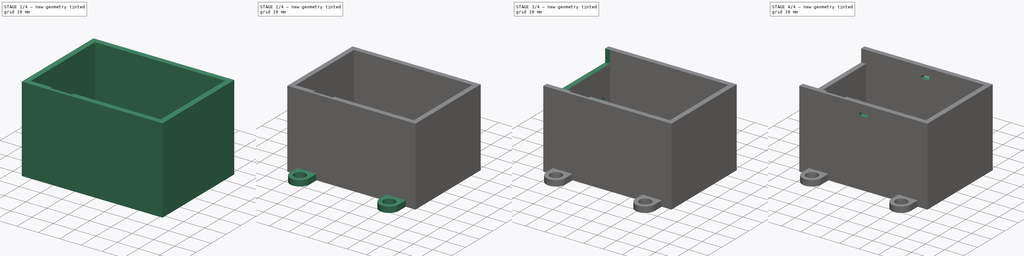
[diagram: build sequence overview — one tinted view per stage of 4, left to right]
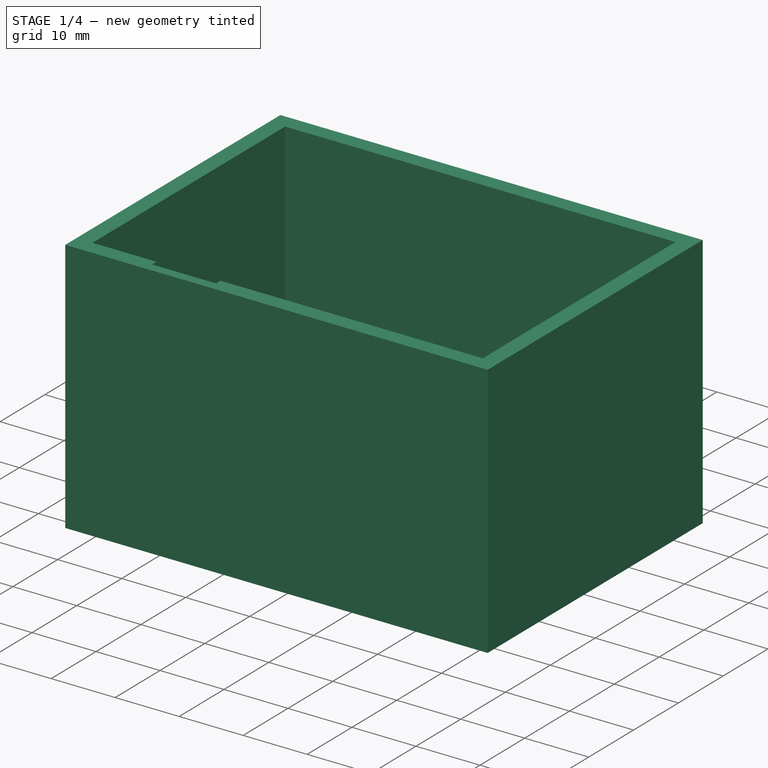
[diagram: stage 1 of 4 — iso view after this stage's code; geometry added in this stage tinted green]
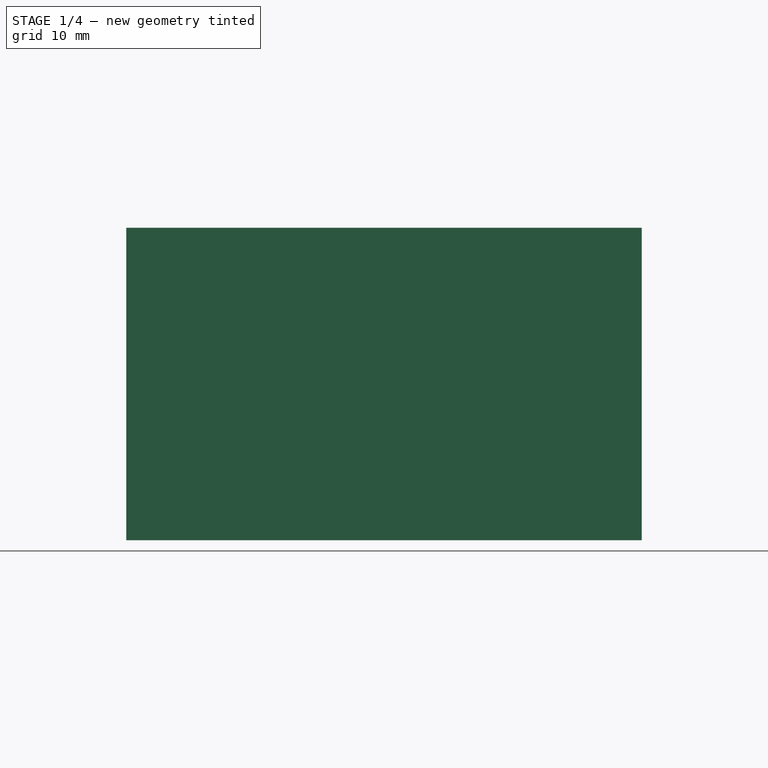
[diagram: stage 1 of 4 — front view after this stage's code; geometry added in this stage tinted green]
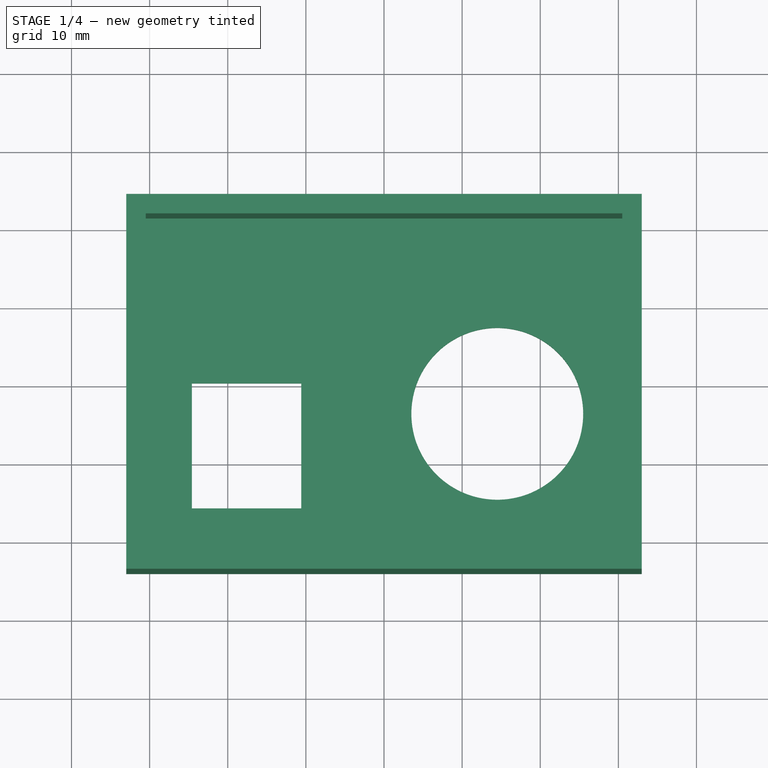
[diagram: stage 1 of 4 — top view after this stage's code; geometry added in this stage tinted green]
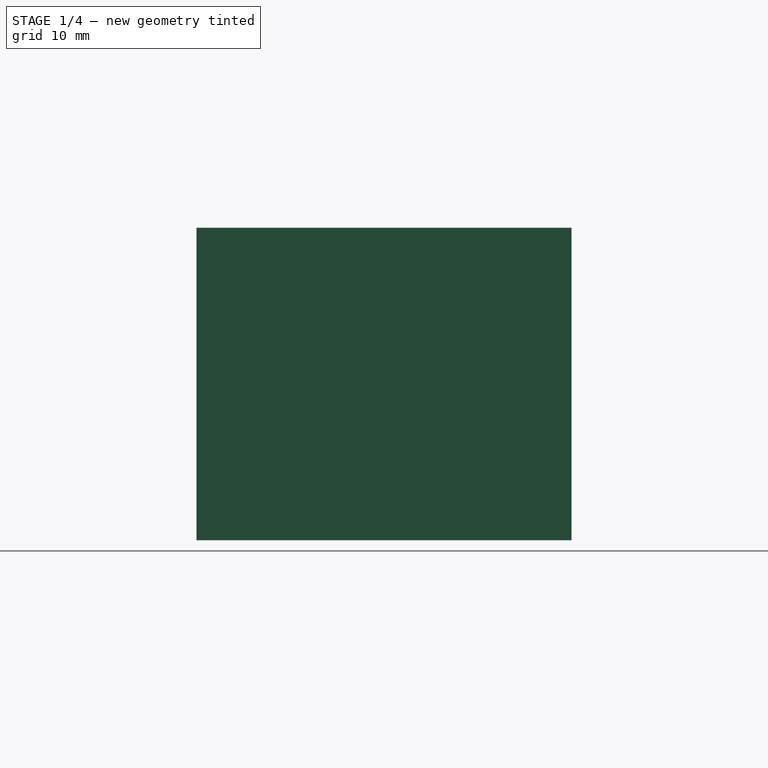
[diagram: stage 1 of 4 — right view after this stage's code; geometry added in this stage tinted green]
FCSTD DOCUMENT  (FreeCAD 0.15R4671 (Git))
Label: goproCase
License: All rights reserved
LicenseURL: http://fr.wikipedia.org/wiki/<copyright redacted>
objects: Sketcher::SketchObject×8, PartDesign::Pocket×6, PartDesign::Pad×2, PartDesign::Mirrored×2, PartDesign::MultiTransform×1, Part::Chamfer×1, App::MeasureDistance×1
note: 28 computed .brp shape members not serialized (recipe doc carries the construction recipe); baked Part::Feature solids carry a one-line shape summary decoded from their .brp

FEATURE [Sketcher::SketchObject] Sketch  label="box_face_sketch"
  sketch-geometry (9):
    g0: LineSegment StartX=-33 StartY=24 StartZ=0 EndX=33 EndY=24 EndZ=0
    g1: LineSegment StartX=33 StartY=24 StartZ=0 EndX=33 EndY=-24 EndZ=0
    g2: LineSegment StartX=33 StartY=-24 StartZ=0 EndX=-33 EndY=-24 EndZ=0
    g3: LineSegment StartX=-33 StartY=-24 StartZ=0 EndX=-33 EndY=24 EndZ=0
    g4: LineSegment StartX=-24.6 StartY=0.4 StartZ=0 EndX=-10.6 EndY=0.4 EndZ=0
    g5: LineSegment StartX=-10.6 StartY=0.4 StartZ=0 EndX=-10.6 EndY=-15.6 EndZ=0
    g6: LineSegment StartX=-10.6 StartY=-15.6 StartZ=0 EndX=-24.6 EndY=-15.6 EndZ=0
    g7: LineSegment StartX=-24.6 StartY=-15.6 StartZ=0 EndX=-24.6 EndY=0.4 EndZ=0
    g8: Circle CenterX=14.5 CenterY=-3.5 CenterZ=0 NormalX=0 NormalY=0 NormalZ=1 Radius=11
  constraints (26):
    c: Coincident(g0,g1)
    c: Coincident(g1,g2)
    c: Coincident(g2,g3)
    c: Coincident(g3,g0)
    c: Horizontal(g0)
    c: Horizontal(g2)
    c: Vertical(g1)
    c: Vertical(g3)
    c: Symmetric(g2,g0,g-1)
    c: Distance(g0) = 66
    c: Distance(g3) = 48
    c: Coincident(g4,g5)
    c: Coincident(g5,g6)
    c: Coincident(g6,g7)
    c: Coincident(g7,g4)
    c: Horizontal(g4)
    c: Horizontal(g6)
    c: Vertical(g5)
    c: Vertical(g7)
    c: Distance(g5) = 16
    c: Distance(g6) = 14
    c: DistanceX(g8,g0) = 18.5
    c: Radius(g8) = 11
    c: DistanceX(g6,g2) = -8.4
    c: DistanceY(g6,g2) = -8.4
    c: DistanceY(g8,g1) = -20.5
FEATURE [PartDesign::Pad] Pad  label="boxFace_Pad"
  Length = 40
  Length2 = 100
  Sketch = -> Sketch
  Type = 0
FEATURE [Sketcher::SketchObject] Sketch001  label="inside_margin_Sketch"
  ExternalGeometry = -> [Pad]
  Placement = pos=(0,0,40) rot=(0,0,1;0rad)
  Support = -> Pad [Face11]
  sketch-geometry (8):
    g0: LineSegment StartX=-30.5 StartY=21.5 StartZ=0 EndX=30.5 EndY=21.5 EndZ=0
    g1: LineSegment StartX=30.5 StartY=21.5 StartZ=0 EndX=30.5 EndY=-21.5 EndZ=0
    g2: LineSegment StartX=-30.5 StartY=-21.5 StartZ=0 EndX=-30.5 EndY=21.5 EndZ=0
    g3: LineSegment StartX=30.5 StartY=-21.5 StartZ=0 EndX=-10.5 EndY=-21.5 EndZ=0
    g4: LineSegment StartX=-10.5 StartY=-21.5 StartZ=0 EndX=-10.5 EndY=-22.5 EndZ=0
    g5: LineSegment StartX=-10.5 StartY=-22.5 StartZ=0 EndX=-20.5 EndY=-22.5 EndZ=0
    g6: LineSegment StartX=-20.5 StartY=-22.5 StartZ=0 EndX=-20.5 EndY=-21.5 EndZ=0
    g7: LineSegment StartX=-20.5 StartY=-21.5 StartZ=0 EndX=-30.5 EndY=-21.5 EndZ=0
  constraints (23):
    c: Coincident(g2,g0)
    c: Horizontal(g0)
    c: Vertical(g1)
    c: Vertical(g2)
    c: DistanceY(g-3,g0) = -2.5
    c: DistanceX(g-3,g0) = 2.5
    c: Symmetric(g2,g1,g-1)
    c: Coincident(g0,g1)
    c: Coincident(g1,g3)
    c: Horizontal(g3)
    c: Coincident(g3,g4)
    c: Vertical(g4)
    c: Coincident(g4,g5)
    c: Horizontal(g5)
    c: Coincident(g5,g6)
    c: Vertical(g6)
    c: Coincident(g6,g7)
    c: Horizontal(g7)
    c: Coincident(g7,g2)
    c: Distance(g7) = 10
    c: Distance(g5) = 10
    c: Distance(g4) = 1
    c: Equal(g4,g6)
FEATURE [PartDesign::Pocket] Pocket
  Length = 38.2
  Sketch = -> Sketch001
  Type = 0
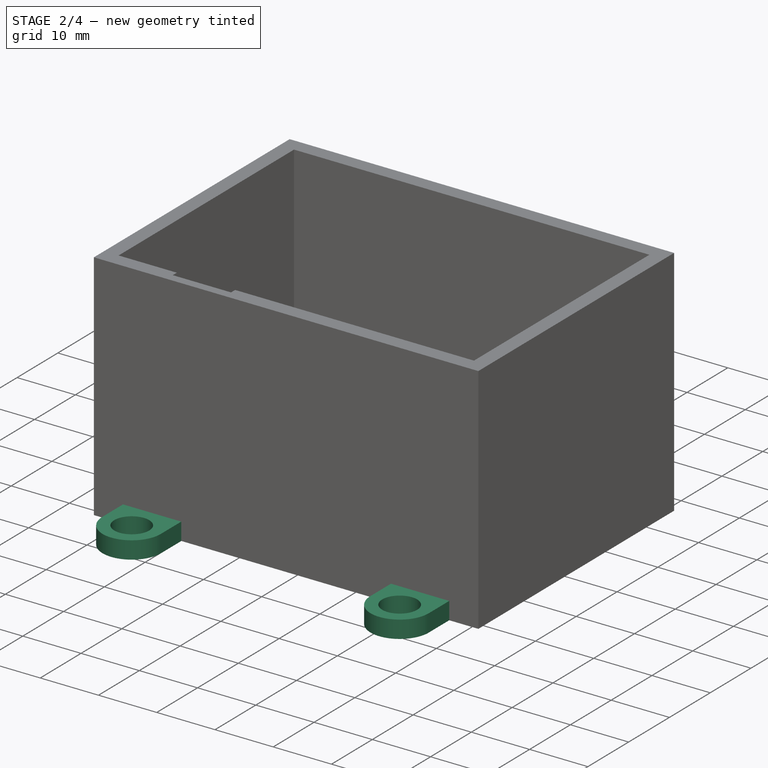
[diagram: stage 2 of 4 — iso view after this stage's code; geometry added in this stage tinted green]
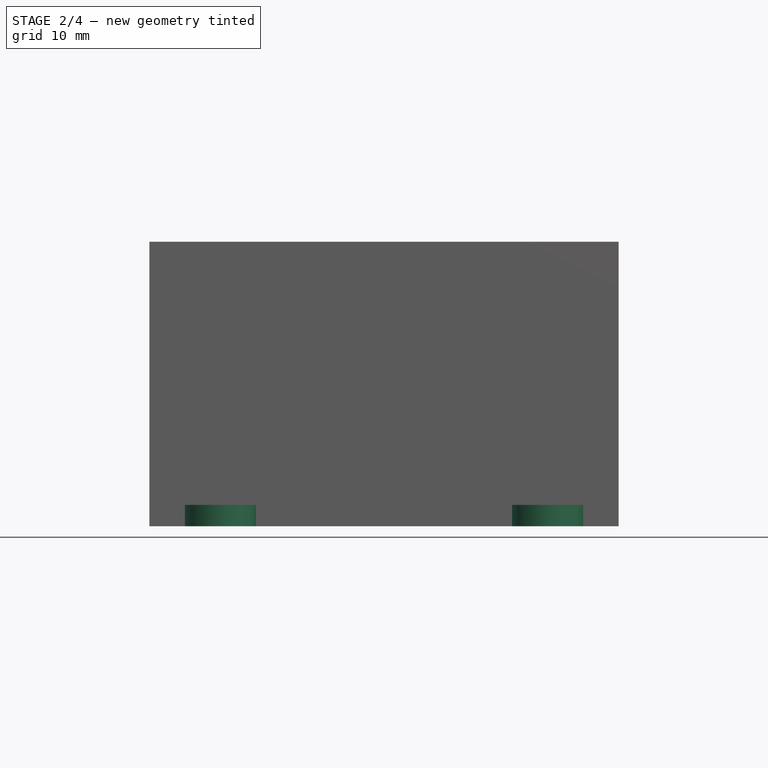
[diagram: stage 2 of 4 — front view after this stage's code; geometry added in this stage tinted green]
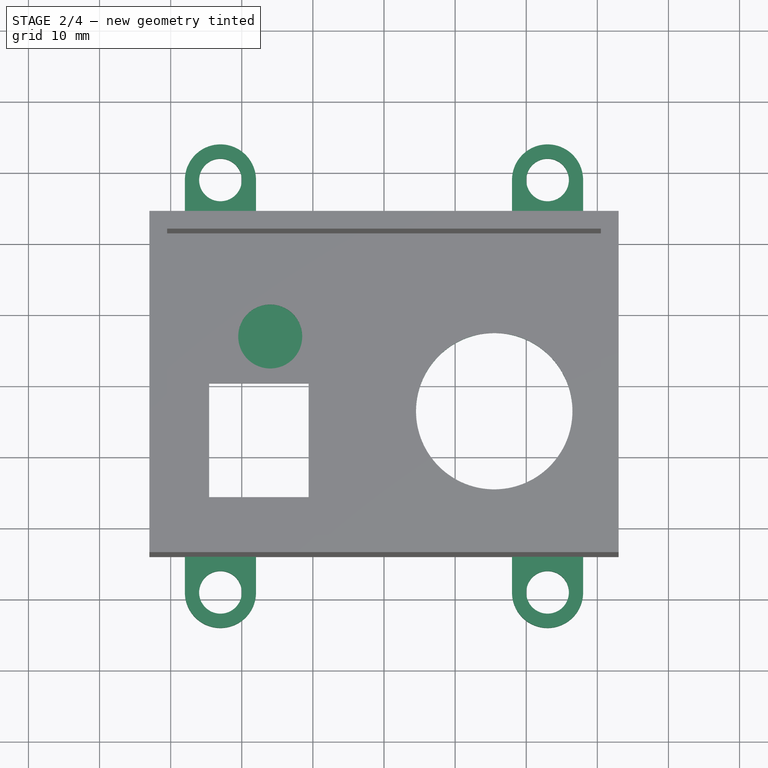
[diagram: stage 2 of 4 — top view after this stage's code; geometry added in this stage tinted green]
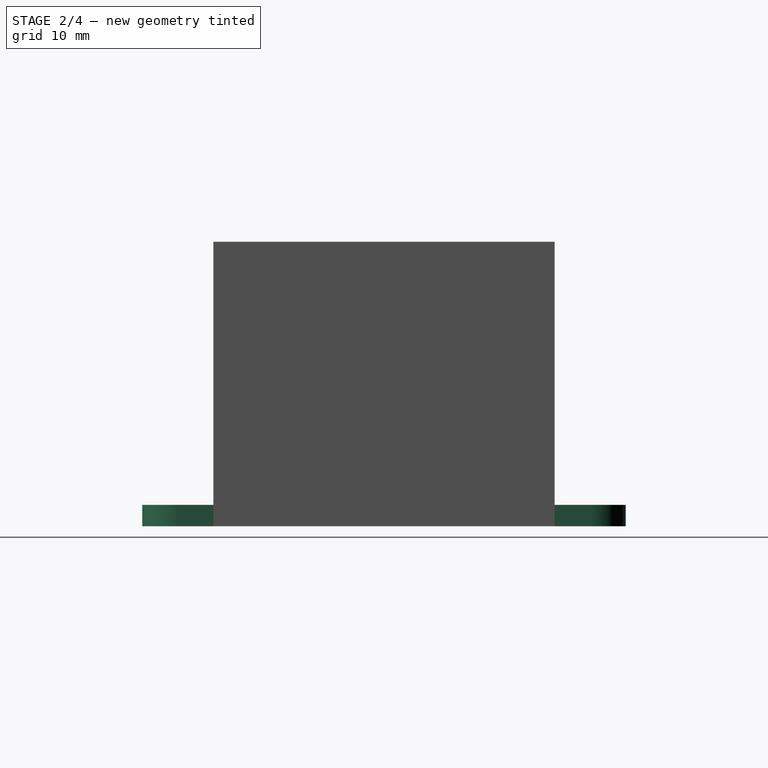
[diagram: stage 2 of 4 — right view after this stage's code; geometry added in this stage tinted green]
FEATURE [Sketcher::SketchObject] Sketch002  label="attach_Sketch"
  ExternalGeometry = -> [Pocket]
  Placement = pos=(0,0,0) rot=(1,0,0;3.14159rad)
  Support = -> Pocket [Face4]
  sketch-geometry (5):
    g0: LineSegment StartX=-28 StartY=24 StartZ=0 EndX=-18 EndY=24 EndZ=0
    g1: LineSegment StartX=-18 StartY=24 StartZ=0 EndX=-18 EndY=29 EndZ=0
    g2: LineSegment StartX=-28 StartY=29 StartZ=0 EndX=-28 EndY=24 EndZ=0
    g3: ArcOfCircle CenterX=-23 CenterY=29 CenterZ=0 NormalX=0 NormalY=0 NormalZ=1 Radius=5 StartAngle=0 EndAngle=3.14159
    g4: Circle CenterX=-23 CenterY=29 CenterZ=0 NormalX=0 NormalY=0 NormalZ=1 Radius=3
  constraints (15):
    c: Coincident(g0,g1)
    c: Coincident(g2,g0)
    c: Horizontal(g0)
    c: Vertical(g1)
    c: Vertical(g2)
    c: Distance(g2) = 5
    c: Coincident(g3,g2)
    c: Coincident(g3,g1)
    c: Equal(g1,g2)
    c: PointOnObject(g0,g-3)
    c: DistanceY(g3,g1) = 0
    c: Radius(g3) = 5
    c: DistanceX(g0,g-3) = -5
    c: Coincident(g4,g3)
    c: Radius(g4) = 3
FEATURE [PartDesign::Pad] Pad001  label="attach_Pad"
  Length = 3
  Length2 = 100
  Reversed = true
  Sketch = -> Sketch002
  Type = 0
FEATURE [PartDesign::Mirrored] Mirrored
  MirrorPlane = -> Sketch002 [H_Axis]
FEATURE [PartDesign::Mirrored] Mirrored001
  MirrorPlane = -> Sketch002 [V_Axis]
FEATURE [PartDesign::MultiTransform] MultiTransform
  Originals = -> [Pad001]
  Transformations = -> [Mirrored,Mirrored001]
FEATURE [Sketcher::SketchObject] Sketch003  label="power_button_hole_TODO_Sketch003"
  ExternalGeometry = -> [MultiTransform]
  Placement = pos=(0,0,1.8) rot=(0,0,1;0rad)
  Support = -> MultiTransform [Face34]
  sketch-geometry (1):
    g0: Circle CenterX=-16 CenterY=7 CenterZ=0 NormalX=0 NormalY=0 NormalZ=1 Radius=4.5
  constraints (3):
    c: Radius(g0) = 4.5
    c: DistanceX(g-4,g0) = 14.5
    c: DistanceY(g0,g-4) = 14.5
FEATURE [PartDesign::Pocket] Pocket001  label="power_button_TODO_check_cercle_positionPocket001"
  Length = 1
  Sketch = -> Sketch003
  Type = 0
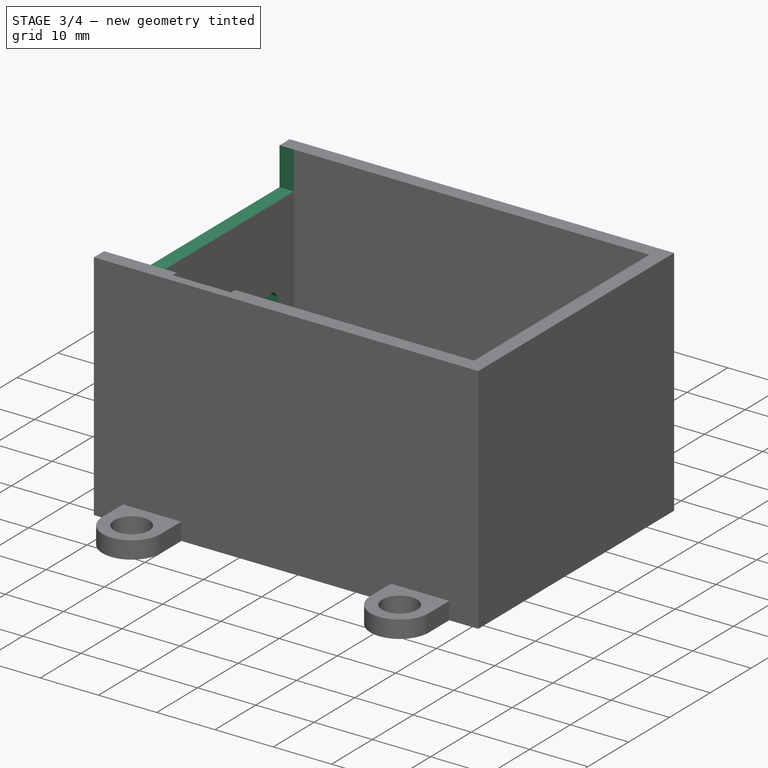
[diagram: stage 3 of 4 — iso view after this stage's code; geometry added in this stage tinted green]
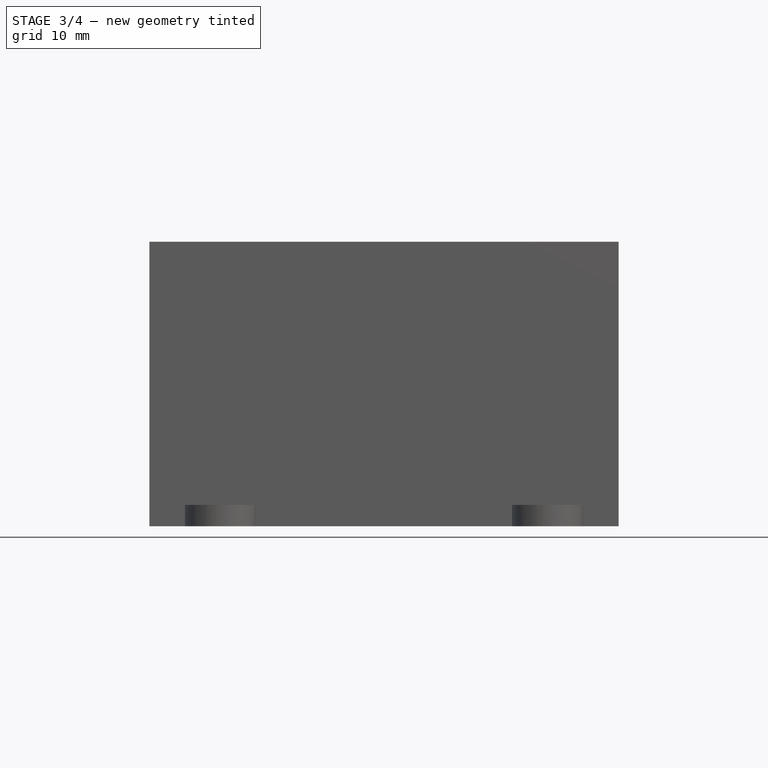
[diagram: stage 3 of 4 — front view after this stage's code; geometry added in this stage tinted green]
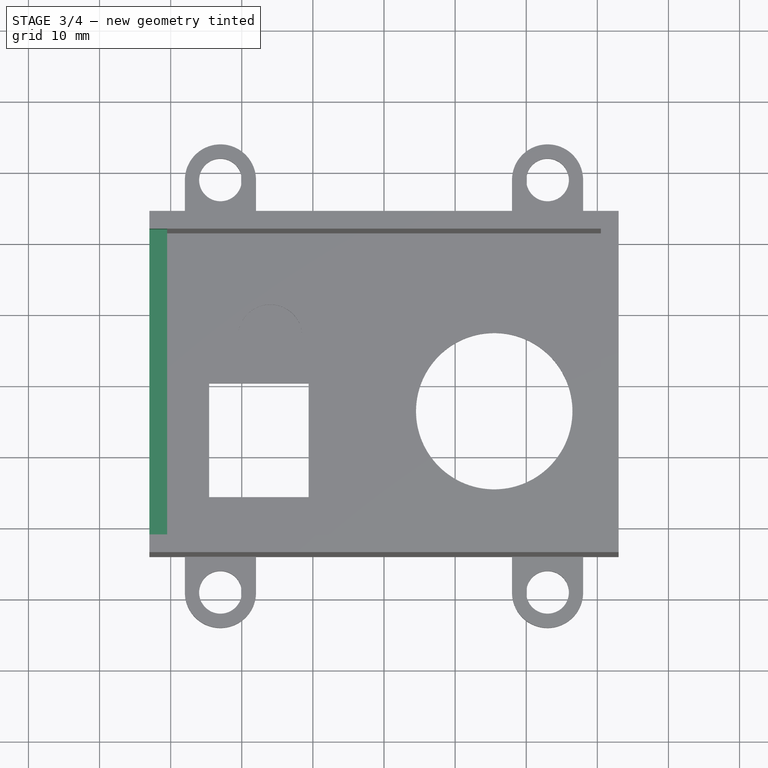
[diagram: stage 3 of 4 — top view after this stage's code; geometry added in this stage tinted green]
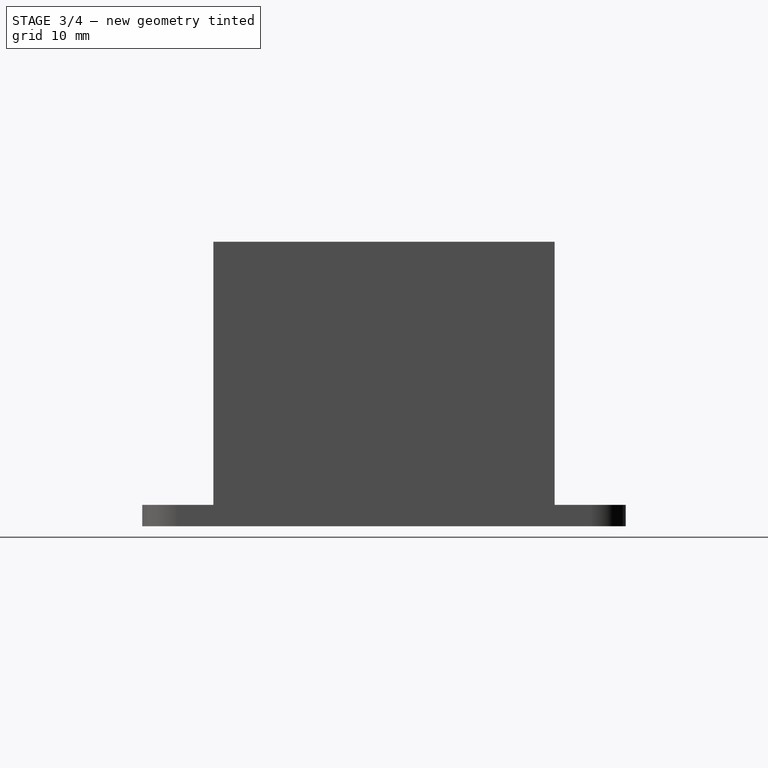
[diagram: stage 3 of 4 — right view after this stage's code; geometry added in this stage tinted green]
FEATURE [Sketcher::SketchObject] Sketch004  label="SD_card_hole_TODO_Sketch004"
  ExternalGeometry = -> [Pocket001]
  Placement = pos=(-33,0,0) rot=(0.57735,-0.57735,-0.57735;2.0944rad)
  Support = -> Pocket001 [Face12]
  sketch-geometry (4):
    g0: LineSegment StartX=-17.5 StartY=19.8 StartZ=0 EndX=12.5 EndY=19.8 EndZ=0
    g1: LineSegment StartX=12.5 StartY=19.8 StartZ=0 EndX=12.5 EndY=7.8 EndZ=0
    g2: LineSegment StartX=12.5 StartY=7.8 StartZ=0 EndX=-17.5 EndY=7.8 EndZ=0
    g3: LineSegment StartX=-17.5 StartY=7.8 StartZ=0 EndX=-17.5 EndY=19.8 EndZ=0
  constraints (12):
    c: Coincident(g0,g1)
    c: Coincident(g1,g2)
    c: Coincident(g2,g3)
    c: Coincident(g3,g0)
    c: Horizontal(g0)
    c: Horizontal(g2)
    c: Vertical(g1)
    c: Vertical(g3)
    c: Distance(g0) = 30
    c: Distance(g1) = 12
    c: DistanceX(g1,g-3) = 9
    c: DistanceY(g1,g-3) = -6
FEATURE [PartDesign::Pocket] Pocket002
  Length = 5
  Sketch = -> Sketch004
  Type = 0
FEATURE [Part::Chamfer] Chamfer  label="SD_Chamfer"
  Base = -> Pocket002
  Edges = 4 edges r=1: [Edge120,Edge121,Edge122,Edge123]
FEATURE [Sketcher::SketchObject] Sketch005  label="RetirerFacilement_Sketch005"
  ExternalGeometry = -> [Chamfer]
  Placement = pos=(-33,0,0) rot=(0.57735,-0.57735,-0.57735;2.0944rad)
  Support = -> Chamfer [Face1]
  sketch-geometry (4):
    g0: LineSegment StartX=-21.5 StartY=40 StartZ=0 EndX=21.5 EndY=40 EndZ=0
    g1: LineSegment StartX=21.5 StartY=40 StartZ=0 EndX=21.5 EndY=33.5 EndZ=0
    g2: LineSegment StartX=21.5 StartY=33.5 StartZ=0 EndX=-21.5 EndY=33.5 EndZ=0
    g3: LineSegment StartX=-21.5 StartY=33.5 StartZ=0 EndX=-21.5 EndY=40 EndZ=0
  constraints (12):
    c: Coincident(g0,g1)
    c: Coincident(g1,g2)
    c: Coincident(g2,g3)
    c: Coincident(g3,g0)
    c: Horizontal(g0)
    c: Horizontal(g2)
    c: Vertical(g1)
    c: Vertical(g3)
    c: Distance(g3) = 6.5
    c: PointOnObject(g0,g-3)
    c: DistanceX(g-3,g0) = -2.5
    c: DistanceX(g0,g-3) = -2.5
FEATURE [PartDesign::Pocket] Pocket003  label="RetirerFacilement_Pocket003"
  Length = 5
  Sketch = -> Sketch005
  Type = 0
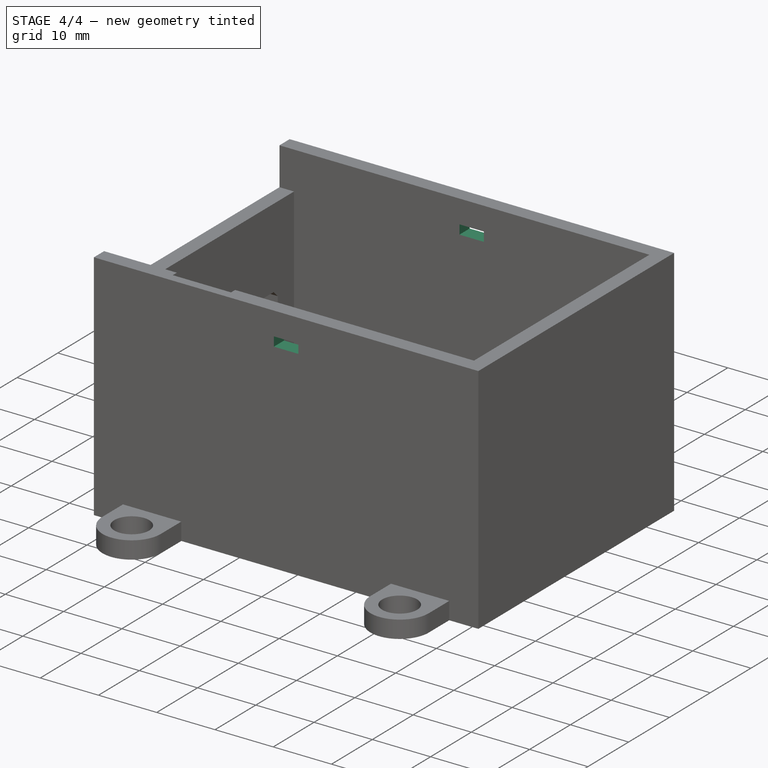
[diagram: stage 4 of 4 — iso view after this stage's code; geometry added in this stage tinted green]
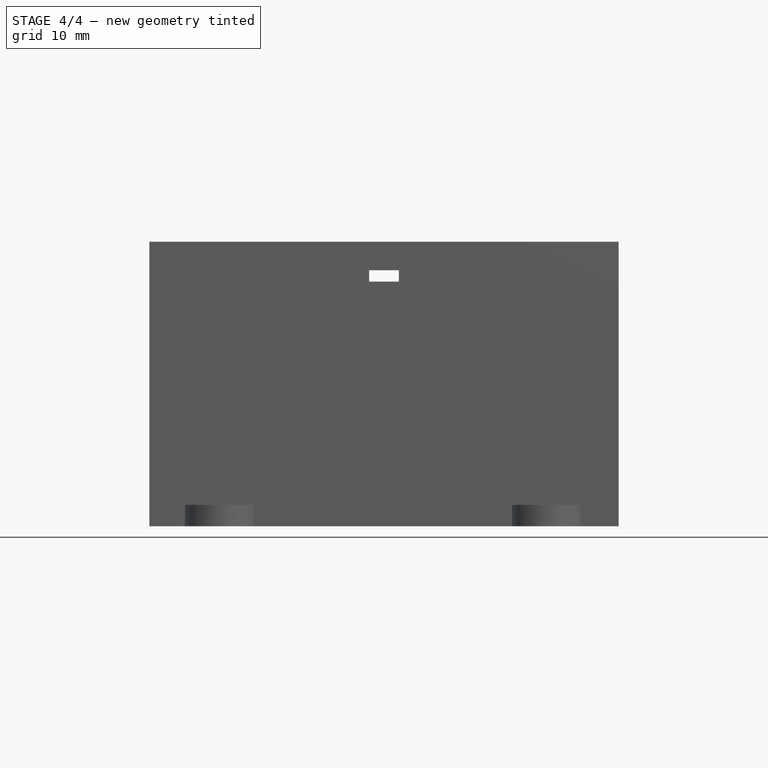
[diagram: stage 4 of 4 — front view after this stage's code; geometry added in this stage tinted green]
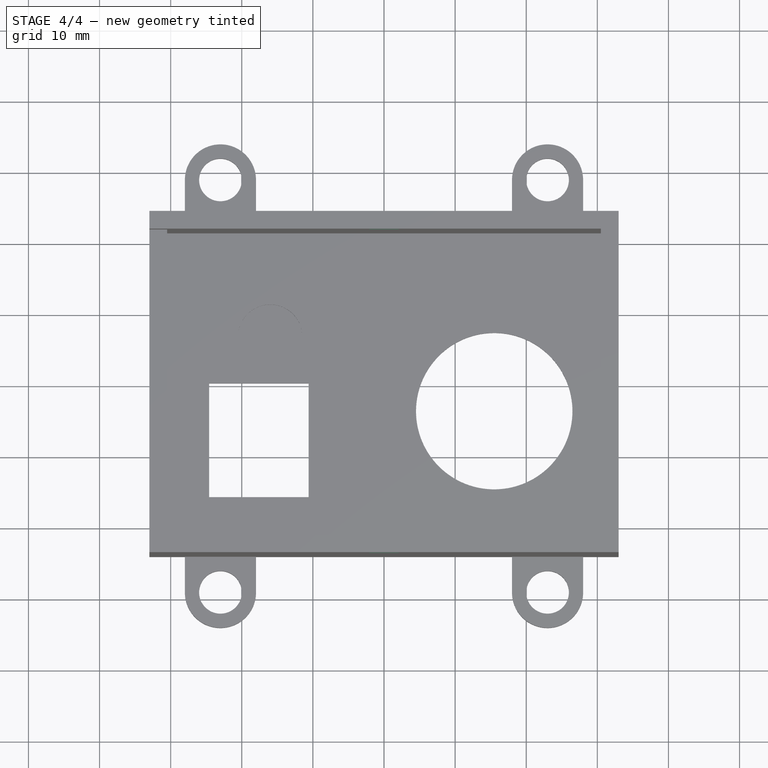
[diagram: stage 4 of 4 — top view after this stage's code; geometry added in this stage tinted green]
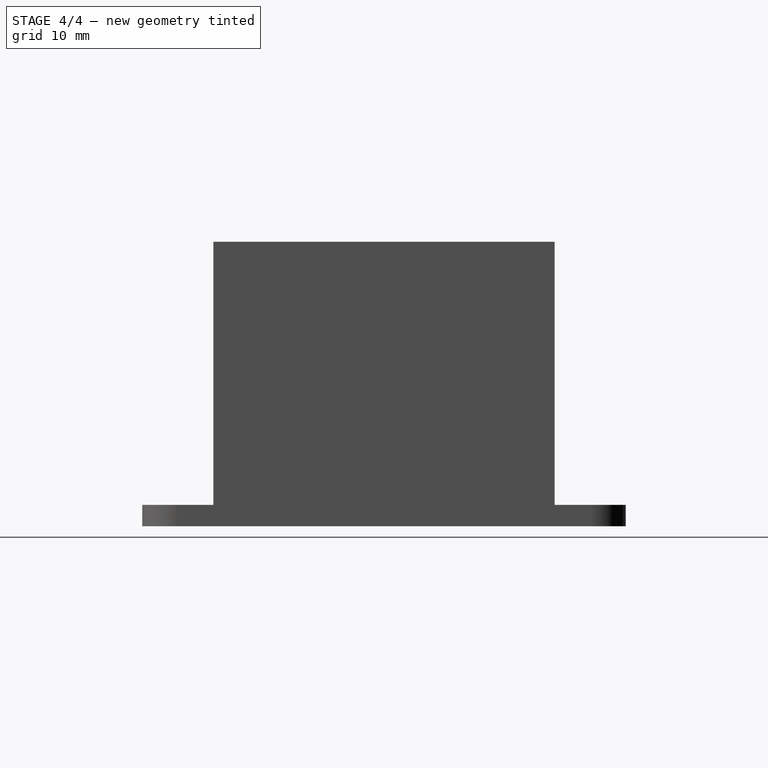
[diagram: stage 4 of 4 — right view after this stage's code; geometry added in this stage tinted green]
FEATURE [Sketcher::SketchObject] Sketch006
  ExternalGeometry = -> [Pocket003]
  Placement = pos=(0,24,0) rot=(0,0.707107,0.707107;3.14159rad)
  Support = -> Pocket003 [Face3]
  sketch-geometry (5):
    g0: LineSegment StartX=-2.1 StartY=34.4 StartZ=0 EndX=2.1 EndY=34.4 EndZ=0
    g1: LineSegment StartX=2.1 StartY=34.4 StartZ=0 EndX=2.1 EndY=36 EndZ=0
    g2: LineSegment StartX=2.1 StartY=36 StartZ=0 EndX=-2.1 EndY=36 EndZ=0
    g3: LineSegment StartX=-2.1 StartY=36 StartZ=0 EndX=-2.1 EndY=34.4 EndZ=0
    g4: LineSegment [constr] StartX=0 StartY=34.4 StartZ=0 EndX=0 EndY=40 EndZ=0
  constraints (16):
    c: Coincident(g0,g1)
    c: Coincident(g1,g2)
    c: Coincident(g2,g3)
    c: Coincident(g3,g0)
    c: Horizontal(g0)
    c: Horizontal(g2)
    c: Vertical(g1)
    c: Vertical(g3)
    c: Distance(g1) = 1.6
    c: DistanceY(g1,g-3) = 4
    c: PointOnObject(g4,g0)
    c: PointOnObject(g4,g-3)
    c: Vertical(g4)
    c: Symmetric(g0,g0,g4)
    c: Symmetric(g-3,g-3,g4)
    c: Distance(g2) = 4.2
FEATURE [PartDesign::Pocket] Pocket004  label="Serrage_Pocket004"
  Length = 5
  Sketch = -> Sketch006
  Type = 0
FEATURE [Sketcher::SketchObject] Sketch007
  ExternalGeometry = -> [Pocket004]
  Placement = pos=(0,-24,0) rot=(1,0,0;1.5708rad)
  Support = -> Pocket004 [Face8]
  sketch-geometry (4):
    g0: LineSegment StartX=-2.1 StartY=36 StartZ=0 EndX=2.1 EndY=36 EndZ=0
    g1: LineSegment StartX=2.1 StartY=36 StartZ=0 EndX=2.1 EndY=34.4 EndZ=0
    g2: LineSegment StartX=2.1 StartY=34.4 StartZ=0 EndX=-2.1 EndY=34.4 EndZ=0
    g3: LineSegment StartX=-2.1 StartY=34.4 StartZ=0 EndX=-2.1 EndY=36 EndZ=0
  constraints (8):
    c: Coincident(g-5,g0)
    c: Coincident(g0,g-7)
    c: Coincident(g0,g1)
    c: Coincident(g1,g-7)
    c: Coincident(g1,g2)
    c: Coincident(g2,g-6)
    c: Coincident(g2,g3)
    c: Coincident(g3,g0)
FEATURE [PartDesign::Pocket] Pocket005  label="SerrageProjAutreFace_Pocket005"
  Length = 5
  Sketch = -> Sketch007
  Type = 0
FEATURE [App::MeasureDistance] Distance  label="Distance: 1.800"
  Distance = 1.80029
  P1 = (26.499,-4.49222,1.8)
  P2 = (26.4969,-4.52422,0)
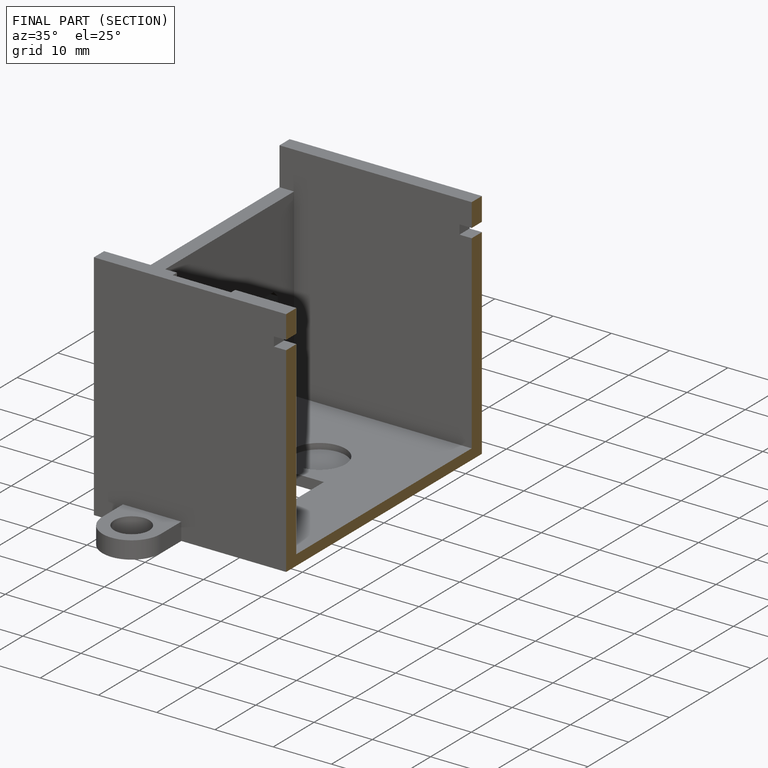
[diagram: finished part — half-section view (interior)]
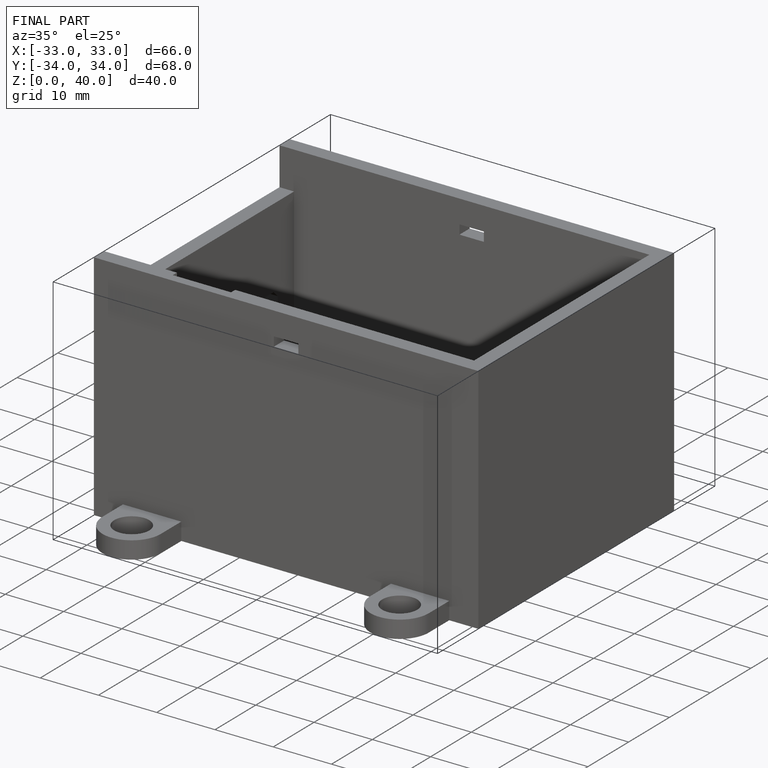
[diagram: finished part — iso view with bounding-box wireframe]
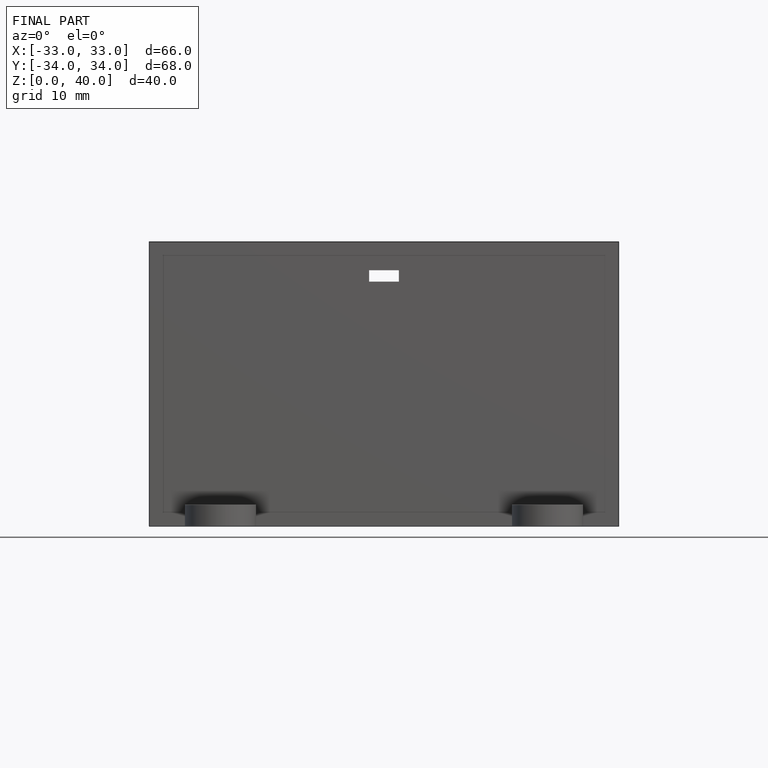
[diagram: finished part — front view with bounding-box wireframe]
